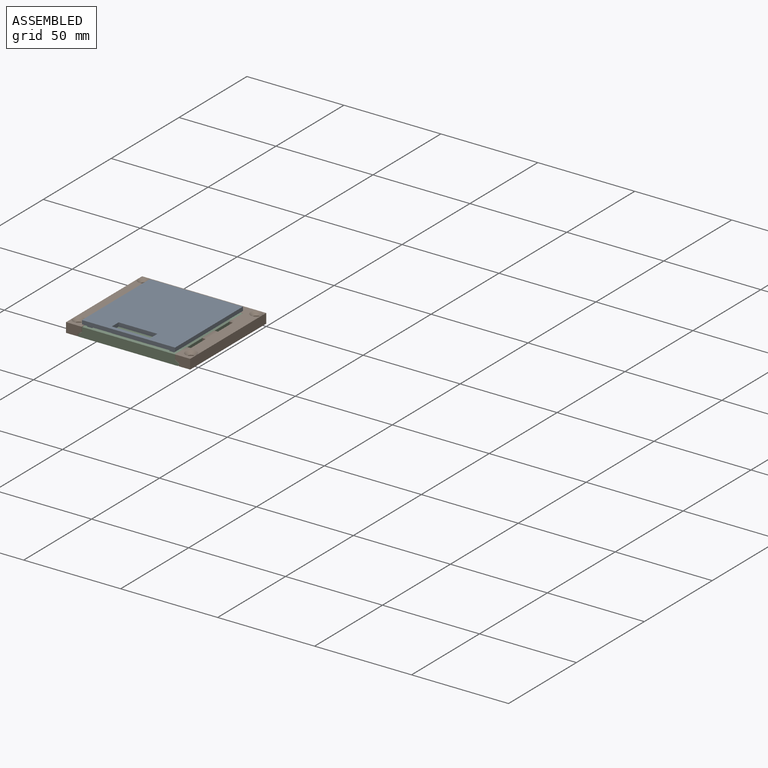
[diagram: assembled view]
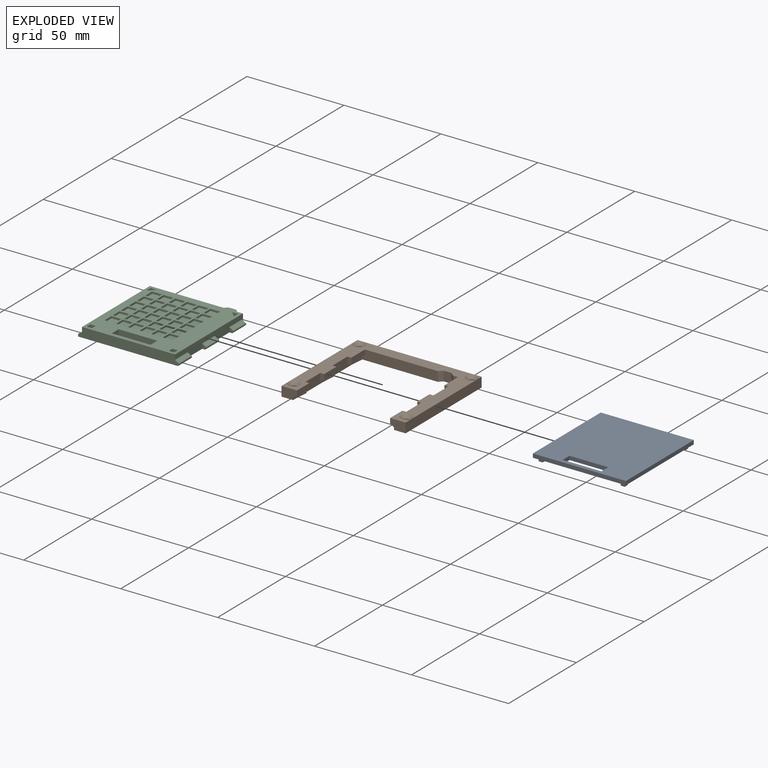
[diagram: exploded view]
GUIDED TOUR — MATED ASSEMBLY (Onshape document 2dd29d841499e23e76da0b67, AutoMate assembly 2dd29d841499e23e76da0b67_14d9db6fb4c461b19bd24225_8d79ffb311ab30ad2a4bd57c_default)

This assembly has 3 components, labeled P0..P2 below (a component is one placed occurrence of a part; the same part can appear more than once), held together by 4 mates. A mate is a constraint between two components; its type names the relative motion it leaves free:
  PLANAR — leaves sliding in the plane through the listed point (normal = the listed direction) and rotation about that normal free.
Axis/direction vectors are unit vectors and 'through' points are millimeter coordinates, both in the assembly's world frame.

MATES
  1. PLANAR "Planar 4": P1 <-> P2, direction (1.000, 0.000, 0.000) through (-56.00, -31.50, 3.75) mm
  2. PLANAR "Planar 2": P0 <-> P2, direction (1.000, 0.000, 0.000) through (-7.75, -56.06, 8.21) mm
  3. PLANAR "Planar 3": P1 <-> P2, direction (0.000, 0.000, 1.000) through (-32.19, -20.72, 5.00) mm
  4. PLANAR "Planar 1": P0 <-> P2, direction (0.000, -1.000, 0.000) through (-7.75, -56.06, 7.21) mm

ASSEMBLY ORDER
  1. P2 — the base component [order heuristic]
  2. P1 — core [order heuristic]
  3. P0 [order verified]
Order-tag legend:
  [order verified] — this step's position reverses a verified removal order: the component was checked to insert without passing through the ones already placed.
  [order heuristic] — the first 2 components form the assembly's core: parts whose collision-free extraction could not be verified, listed in mate-graph order.

Of the 3 components, 1 carries the full construction recipe — the FeatureScript program that regenerates the part's solid from scratch; the rest are supplied as boundary geometry only.
Each toured component is shown spotlighted twice — in the assembled view, then in the exploded view, where a leader line traces a displaced component back to its assembled socket (saturated green if recipe-attached, orange if geometry-only; every other component desaturated gray) — followed by its recipe or geometry summary and the mates that hold it.
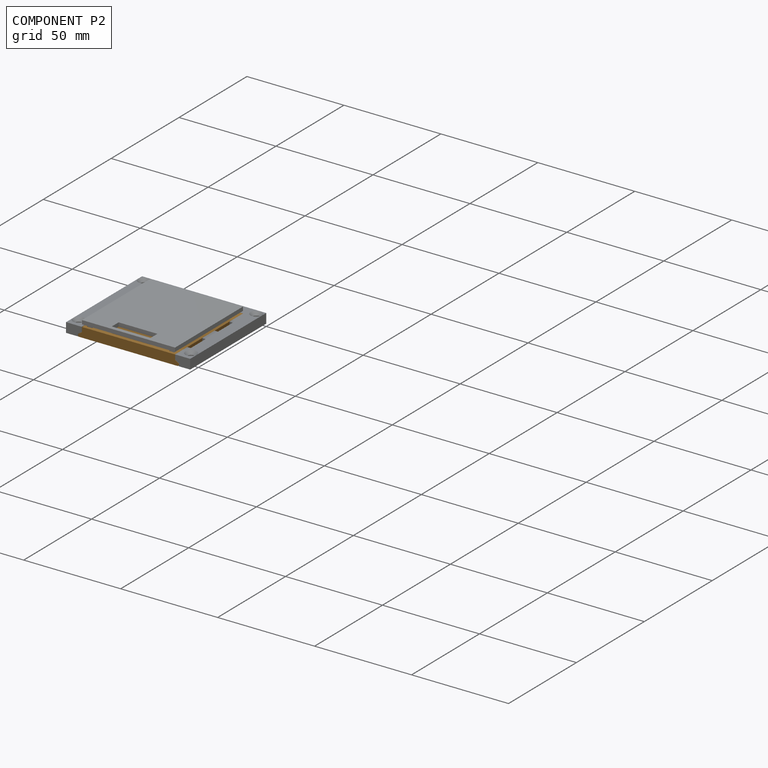
[diagram: component P2 — assembled]
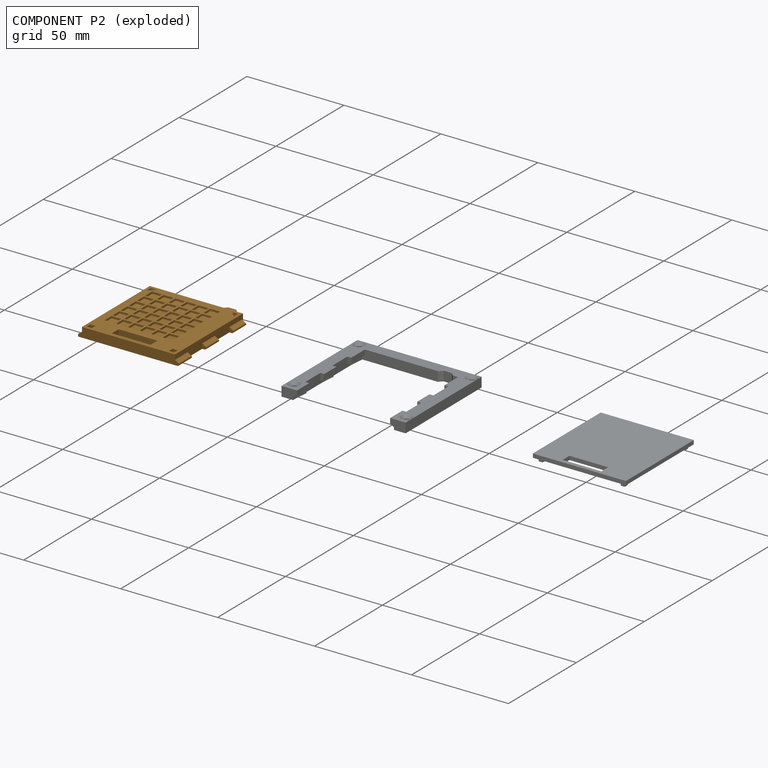
[diagram: component P2 — exploded]
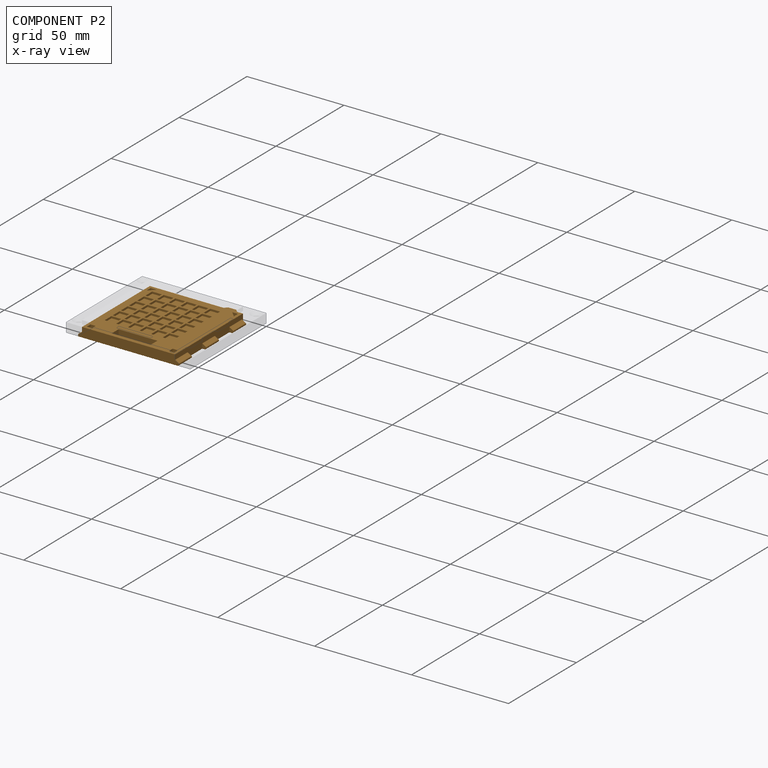
[diagram: component P2 — x-ray view]
COMPONENT P2 — geometry summary (no construction recipe available for this part):
  bounding box: 52.6 x 51.8 x 5.3 mm
  B-rep topology: 1 solid, 276 faces, 1381 edges
  volume: 10692 mm^3 (74% of its bounding box)
Held by: PLANAR mate "Planar 4" to P1; PLANAR mate "Planar 2" to P0; PLANAR mate "Planar 3" to P1; PLANAR mate "Planar 1" to P0.
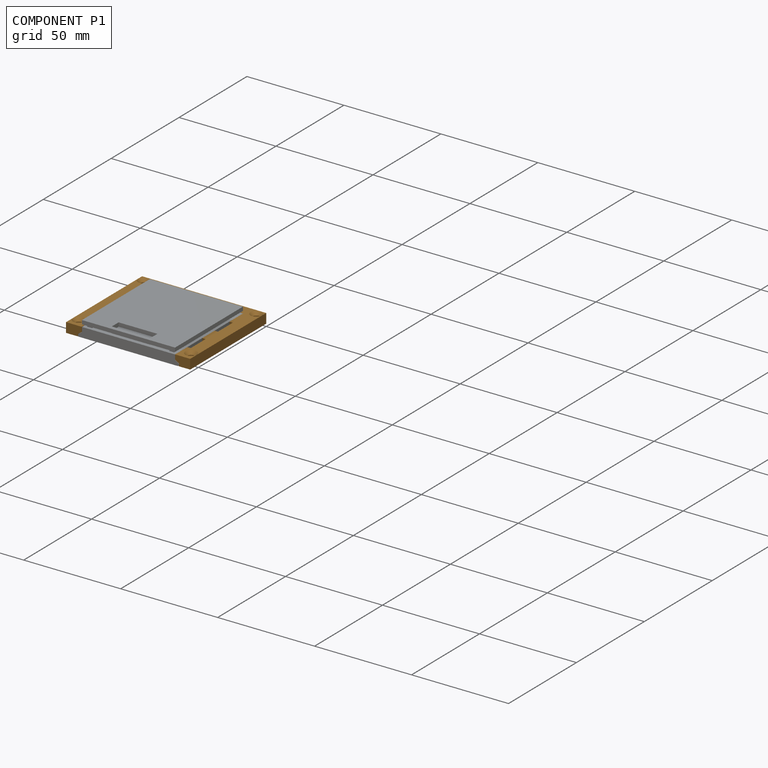
[diagram: component P1 — assembled]
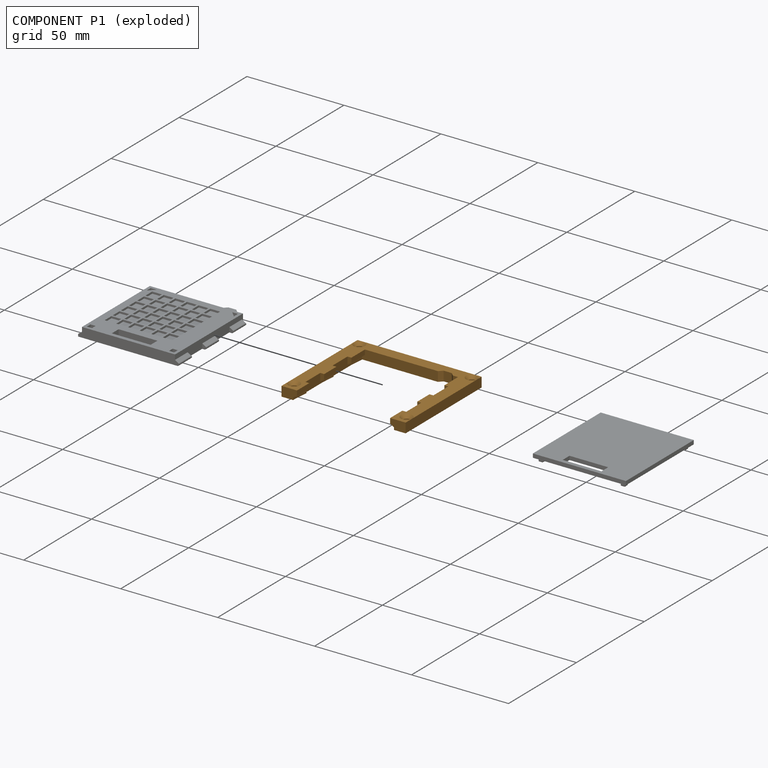
[diagram: component P1 — exploded]
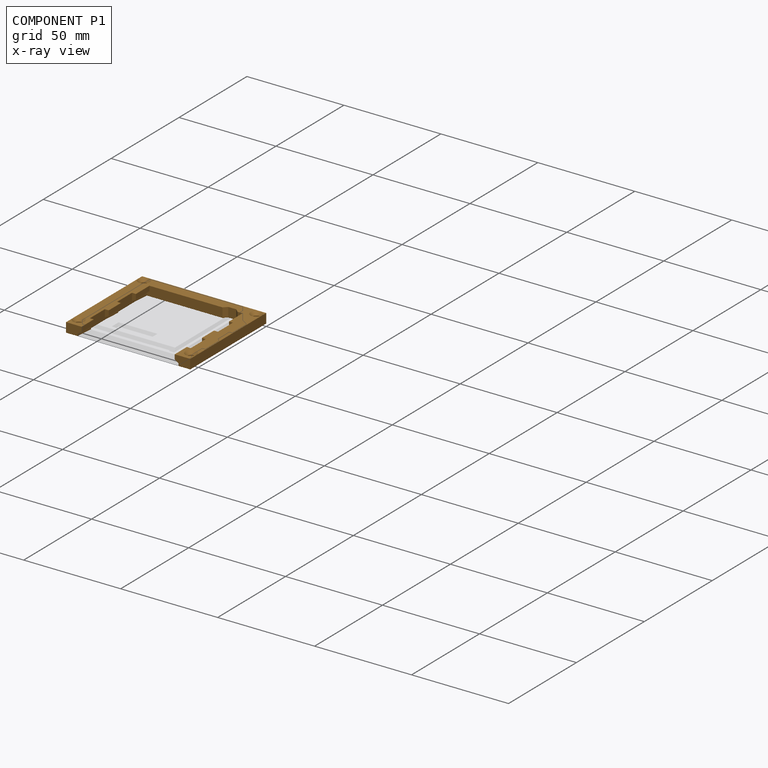
[diagram: component P1 — x-ray view]
COMPONENT P1 — geometry summary (no construction recipe available for this part):
  bounding box: 64.0 x 56.0 x 5.0 mm
  B-rep topology: 1 solid, 49 faces, 282 edges
  volume: 5029 mm^3 (28% of its bounding box)
Held by: PLANAR mate "Planar 4" to P2; PLANAR mate "Planar 3" to P2.
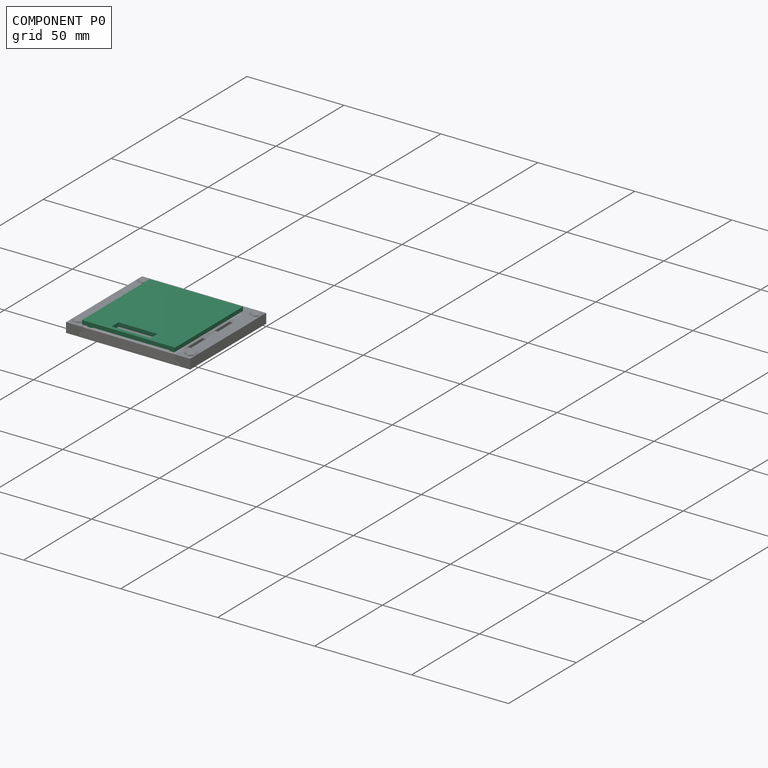
[diagram: component P0 — assembled]
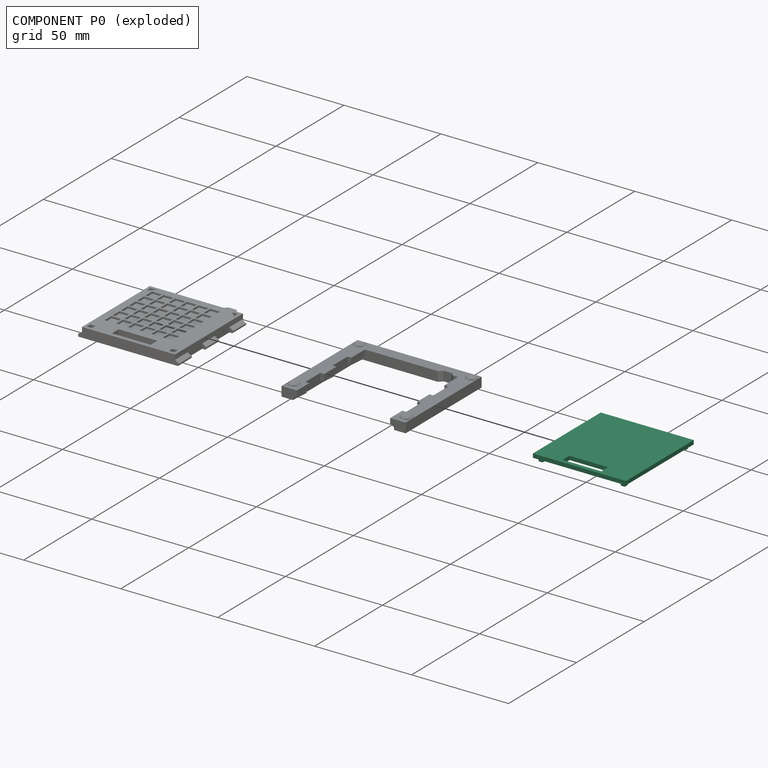
[diagram: component P0 — exploded]
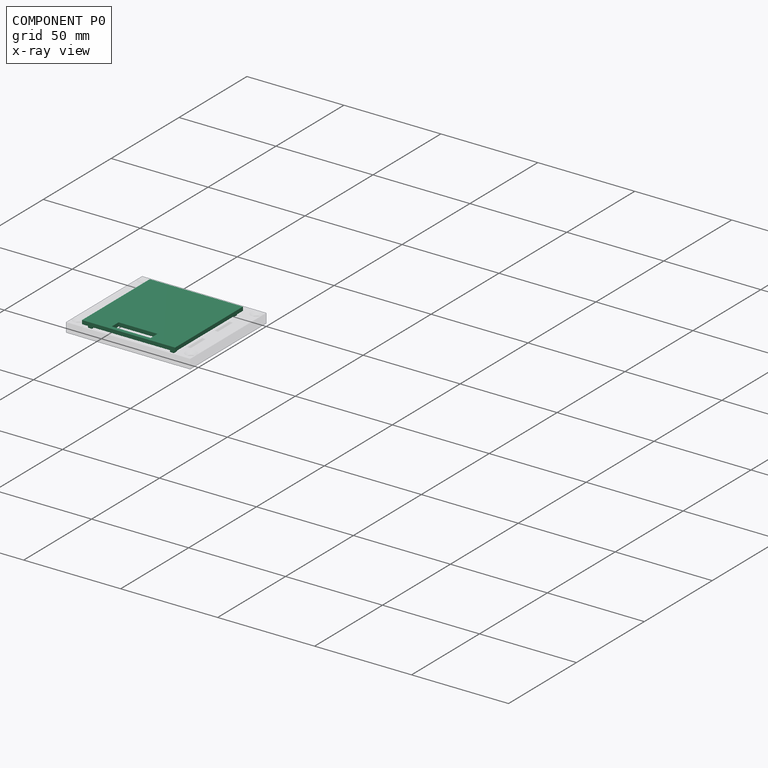
[diagram: component P0 — x-ray view]
COMPONENT P0 — recipe-attached (CADFS 00936661, mesh-verified: the recipe's output STEP matches this component's geometry to below the mesh-comparison resolution (tessellation chordal tolerance ~0.104 mm)).
Held by: PLANAR mate "Planar 2" to P2; PLANAR mate "Planar 1" to P2.
Construction recipe (FeatureScript — the CAD program that rebuilds this solid; sketch coordinates are in the units given by the * unit suffixes, e.g. mm):

FeatureScript 1511;
import(path : "onshape/std/geometry.fs", version : "1511.0");
import(path : "onshape/std/common.fs", version : "1511.0");
const mm = millimeter;
const VERTEX = EntityType.VERTEX;
const EDGE = EntityType.EDGE;
const FACE = EntityType.FACE;
const BODY = EntityType.BODY;
function v(x, y){return vector(x, y);}
function OD(order){return orderDisambiguation(order);}
function OSD(set){return originalSetDisambiguation(set);}
function TD(topology){return topologyDisambiguation(topology);}
function TDD(query){return trueDependencyDisambiguation(query);}
function sQuery(a, b, c) {return sketchEntityQuery(a, b, c);}

annotation { "Feature Type Name" : "Feature", "Feature Type Description" : "" }
export const myFeature = defineFeature(function(context is Context, id is Id, definition is map)
    precondition{}
    {
        {
            var Q0;
            Q0=qCreatedBy(makeId("Top.planeOp"),FACE);
            var sketch = newSketch(context, id + "F0", { "sketchPlane" : qUnion([Q0])});
            skLineSegment(sketch, "E0.bottom", {"start": v(0, 0) * mm, "end": v(48, 0) * mm});
            skLineSegment(sketch, "E0.top", {"start": v(0, -50) * mm, "end": v(48, -50) * mm});
            skLineSegment(sketch, "E0.left", {"start": v(0, 0) * mm, "end": v(0, -50) * mm});
            skLineSegment(sketch, "E0.right", {"start": v(48, 0) * mm, "end": v(48, -50) * mm});
            skSolve(sketch);
        }
        {
            var Q0;
            Q0=makeQuery(id+"F0.imprint","IMPRINT",FACE,{"disambiguationData":[TD([[makeQuery(id+"F0.imprint","IMPRINT",EDGE,{"derivedFrom":sQuery(id+"F0.wireOp",EDGE,"8EBudFLo-aEb5-milo-hGKJ-UnPFVyJPno7u")}),1.0]])]});
            var Q1;
            Q1=makeQuery(id+"F0.imprint","IMPRINT",FACE,{"disambiguationData":[TD([[makeQuery(id+"F0.imprint","IMPRINT",EDGE,{"derivedFrom":sQuery(id+"F0.wireOp",EDGE,"b2cc03f5-71c5-4ed7-81ff-36fc711708750.MirrorCS")}),-1.0]])]});
            var Q2;
            Q2=makeQuery(id+"F0.imprint","IMPRINT",FACE,{"disambiguationData":[TD([[makeQuery(id+"F0.imprint","IMPRINT",EDGE,{"derivedFrom":sQuery(id+"F0.wireOp",EDGE,"E0.bottom")}),-1.0]])]});
            extrude(context, id + "F1", {"entities" : qUnion([Q0, Q1, Q2]), "depth" : 2 * mm, "offsetDistance" : 25 * mm});
        }
        {
            var Q0;
            Q0=makeQuery(id+"F1.opExtrude","CAP_FACE",FACE,{"disambiguationData":[OSD([sQuery(id+"F0.wireOp",EDGE,"E0.bottom"),sQuery(id+"F0.wireOp",EDGE,"E0.top"),sQuery(id+"F0.wireOp",EDGE,"E0.left"),sQuery(id+"F0.wireOp",EDGE,"E0.right")])],"isStart":false});
            var sketch = newSketch(context, id + "F2", { "sketchPlane" : qUnion([Q0])});
            skLineSegment(sketch, "E1", {"start": v(1.5, -1.5) * mm, "end": v(1.5, -4.5) * mm, "construction": true});
            skLineSegment(sketch, "E2", {"start": v(1.5, -4.5) * mm, "end": v(4.5, -1.5) * mm, "construction": true});
            skLineSegment(sketch, "E3", {"start": v(4.5, -1.5) * mm, "end": v(1.5, -1.5) * mm, "construction": true});
            skLineSegment(sketch, "E4.0", {"start": v(1.75, -3.9) * mm, "end": v(3.9, -1.75) * mm});
            skLineSegment(sketch, "E4.1", {"start": v(1.75, -1.75) * mm, "end": v(1.75, -3.9) * mm});
            skLineSegment(sketch, "E4.2", {"start": v(3.9, -1.75) * mm, "end": v(1.75, -1.75) * mm});
            skLineSegment(sketch, "E5.0", {"start": v(-5, 5) * mm, "end": v(-5, -55) * mm});
            skLineSegment(sketch, "E5.1", {"start": v(53, 5) * mm, "end": v(-5, 5) * mm});
            skLineSegment(sketch, "E5.2", {"start": v(53, -55) * mm, "end": v(53, 5) * mm});
            skLineSegment(sketch, "E5.3", {"start": v(-5, -55) * mm, "end": v(53, -55) * mm});
            skLineSegment(sketch, "E6", {"start": v(24, 0) * mm, "end": v(24, -10.54) * mm, "construction": true});
            skLineSegment(sketch, "E7", {"start": v(0, -25) * mm, "end": v(10.69, -25) * mm, "construction": true});
            skLineSegment(sketch, "E8.MirrorCS", {"start": v(46.25, -3.9) * mm, "end": v(44.1, -1.75) * mm});
            skLineSegment(sketch, "E9.MirrorCS", {"start": v(46.25, -1.75) * mm, "end": v(46.25, -3.9) * mm});
            skLineSegment(sketch, "E10.MirrorCS", {"start": v(44.1, -1.75) * mm, "end": v(46.25, -1.75) * mm});
            skLineSegment(sketch, "E11.MirrorCS", {"start": v(1.75, -46.1) * mm, "end": v(3.9, -48.25) * mm});
            skLineSegment(sketch, "E12.MirrorCS", {"start": v(3.9, -48.25) * mm, "end": v(1.75, -48.25) * mm});
            skLineSegment(sketch, "E13.MirrorCS", {"start": v(1.75, -48.25) * mm, "end": v(1.75, -46.1) * mm});
            skLineSegment(sketch, "E14.MirrorCS", {"start": v(46.25, -46.1) * mm, "end": v(44.1, -48.25) * mm});
            skLineSegment(sketch, "E15.MirrorCS", {"start": v(46.25, -48.25) * mm, "end": v(46.25, -46.1) * mm});
            skLineSegment(sketch, "E16.MirrorCS", {"start": v(44.1, -48.25) * mm, "end": v(46.25, -48.25) * mm});
            skLineSegment(sketch, "E17", {"start": v(1.75, -46.1) * mm, "end": v(3.9, -46.1) * mm});
            skLineSegment(sketch, "E18", {"start": v(3.9, -46.1) * mm, "end": v(3.9, -48.25) * mm});
            skLineSegment(sketch, "E19", {"start": v(46.25, -46.1) * mm, "end": v(44.1, -46.1) * mm});
            skLineSegment(sketch, "E20", {"start": v(44.1, -46.1) * mm, "end": v(44.1, -48.25) * mm});
            skSolve(sketch);
        }
        {
            var Q0;
            Q0=makeQuery(id+"F2.imprint","IMPRINT",FACE,{"disambiguationData":[TD([[makeQuery(id+"F2.imprint","IMPRINT",EDGE,{"derivedFrom":sQuery(id+"F2.wireOp",EDGE,"E4.0")}),1.0]])]});
            var Q1;
            Q1=makeQuery(id+"F2.imprint","IMPRINT",FACE,{"disambiguationData":[TD([[makeQuery(id+"F2.imprint","IMPRINT",EDGE,{"derivedFrom":sQuery(id+"F2.wireOp",EDGE,"E8.MirrorCS")}),-1.0]])]});
            var Q2;
            Q2=makeQuery(id+"F2.imprint","IMPRINT",FACE,{"disambiguationData":[TD([[makeQuery(id+"F2.imprint","IMPRINT",EDGE,{"derivedFrom":sQuery(id+"F2.wireOp",EDGE,"E14.MirrorCS")}),1.0]])]});
            var Q3;
            Q3=makeQuery(id+"F2.imprint","IMPRINT",FACE,{"disambiguationData":[TD([[makeQuery(id+"F2.imprint","IMPRINT",EDGE,{"derivedFrom":sQuery(id+"F2.wireOp",EDGE,"E11.MirrorCS")}),-1.0]])]});
            var Q4;
            Q4=makeQuery(id+"F2.imprint","IMPRINT",FACE,{"disambiguationData":[TD([[makeQuery(id+"F2.imprint","IMPRINT",EDGE,{"derivedFrom":sQuery(id+"F2.wireOp",EDGE,"E11.MirrorCS")}),1.0]])]});
            var Q5;
            Q5=makeQuery(id+"F2.imprint","IMPRINT",FACE,{"disambiguationData":[TD([[makeQuery(id+"F2.imprint","IMPRINT",EDGE,{"derivedFrom":sQuery(id+"F2.wireOp",EDGE,"E14.MirrorCS")}),-1.0]])]});
            extrude(context, id + "F3", {"entities" : qUnion([Q0, Q1, Q2, Q3, Q4, Q5]), "operationType" : NewBodyOperationType.ADD, "depth" : 2 * mm, "offsetDistance" : 25 * mm});
        }
        {
            var Q0;
            Q0=makeQuery(id+"F1.opExtrude","CAP_FACE",FACE,{"disambiguationData":[OSD([sQuery(id+"F0.wireOp",EDGE,"E0.bottom"),sQuery(id+"F0.wireOp",EDGE,"E0.top"),sQuery(id+"F0.wireOp",EDGE,"E0.left"),sQuery(id+"F0.wireOp",EDGE,"E0.right")])],"isStart":false});
            var sketch = newSketch(context, id + "F4", { "sketchPlane" : qUnion([Q0])});
            skLineSegment(sketch, "E21.bottom", {"start": v(14, -43) * mm, "end": v(34, -43) * mm});
            skLineSegment(sketch, "E21.top", {"start": v(14, -48) * mm, "end": v(34, -48) * mm});
            skLineSegment(sketch, "E21.left", {"start": v(14, -43) * mm, "end": v(14, -48) * mm});
            skLineSegment(sketch, "E21.right", {"start": v(34, -43) * mm, "end": v(34, -48) * mm});
            skLineSegment(sketch, "E22", {"start": v(24, -50) * mm, "end": v(24, -24.04) * mm, "construction": true});
            skPoint(sketch, "E23", {"position": v(24, -48) * mm});
            skSolve(sketch);
        }
        {
            var Q0;
            Q0=makeQuery(id+"F4.imprint","IMPRINT",FACE,{"disambiguationData":[TD([[makeQuery(id+"F4.imprint","IMPRINT",EDGE,{"derivedFrom":sQuery(id+"F4.wireOp",EDGE,"E21.bottom")}),-1.0]])]});
            extrude(context, id + "F5", {"entities" : qUnion([Q0]), "operationType" : NewBodyOperationType.REMOVE, "oppositeDirection" : true, "depth" : 25 * mm, "offsetDistance" : 25 * mm});
        }
        {
            var Q0;
            Q0=makeQuery(id+"F3.opExtrude","CAP_FACE",FACE,{"disambiguationData":[OSD([sQuery(id+"F2.wireOp",EDGE,"E12.MirrorCS"),sQuery(id+"F2.wireOp",EDGE,"E13.MirrorCS"),sQuery(id+"F2.wireOp",EDGE,"E17"),sQuery(id+"F2.wireOp",EDGE,"E18")])],"isStart":false});
            var Q1;
            Q1=makeQuery(id+"F3.opExtrude","CAP_FACE",FACE,{"disambiguationData":[OSD([sQuery(id+"F2.wireOp",EDGE,"E4.0"),sQuery(id+"F2.wireOp",EDGE,"E4.1"),sQuery(id+"F2.wireOp",EDGE,"E4.2")])],"isStart":false});
            var Q2;
            Q2=makeQuery(id+"F3.opExtrude","CAP_FACE",FACE,{"disambiguationData":[OSD([sQuery(id+"F2.wireOp",EDGE,"E8.MirrorCS"),sQuery(id+"F2.wireOp",EDGE,"E9.MirrorCS"),sQuery(id+"F2.wireOp",EDGE,"E10.MirrorCS")])],"isStart":false});
            var Q3;
            Q3=makeQuery(id+"F3.opExtrude","CAP_FACE",FACE,{"disambiguationData":[OSD([sQuery(id+"F2.wireOp",EDGE,"E15.MirrorCS"),sQuery(id+"F2.wireOp",EDGE,"E16.MirrorCS"),sQuery(id+"F2.wireOp",EDGE,"E19"),sQuery(id+"F2.wireOp",EDGE,"E20")])],"isStart":false});
            fillet(context, id + "F6", {"entities" : qUnion([Q0, Q1, Q2, Q3]), "tangentPropagation" : true, "crossSection" : FilletCrossSection.CONIC, "radius" : 0.5 * mm, "rho" : 0.5, "defaultsChanged" : false, "vertexSettings" : [], "allowEdgeOverflow" : false});
        }
    });
PROVENANCE & LICENSES
Assembly (occurrences, transforms, mates, per-part STEP geometry): AutoMate dataset, Zenodo record 7776208, CC0.
Construction recipes: CADFS (HuggingFace VladPyatov/CADFS, CC-BY-4.0, layered over the ABC dataset), FeatureScript reconstruction programs keyed by ABC model id.
Join: ABC meta listings map ABC model id -> Onshape documentId; within a shared document, parts are matched by geometric signature (bounding-box dims + volume at 0.1% relative tolerance, exact B-rep face/solid counts).
Verification: 1 of this assembly's 3 components carries a recipe attachment, and every attachment is mesh-verified: the CADFS STEP and the AutoMate member STEP were compared as meshes in their shared local frame (symmetric sampled-point-to-mesh distance); worst across the 1 attachment: below the mesh-comparison resolution (tessellation chordal tolerance ~0.104 mm) on a 69 mm part.
Renders: orthographic iso camera (az 35 / el 25); the floor grid conveys scale (grid pitch printed in each image; no ruler). In the exploded view each component is displaced by its stored offset vector: the offsets alone carry the explosion direction (mate normal/axis signs are not orientation cues and do not encode it), and separation distances are assigned per mate-chain, not proportionally to assembly-order depth.
